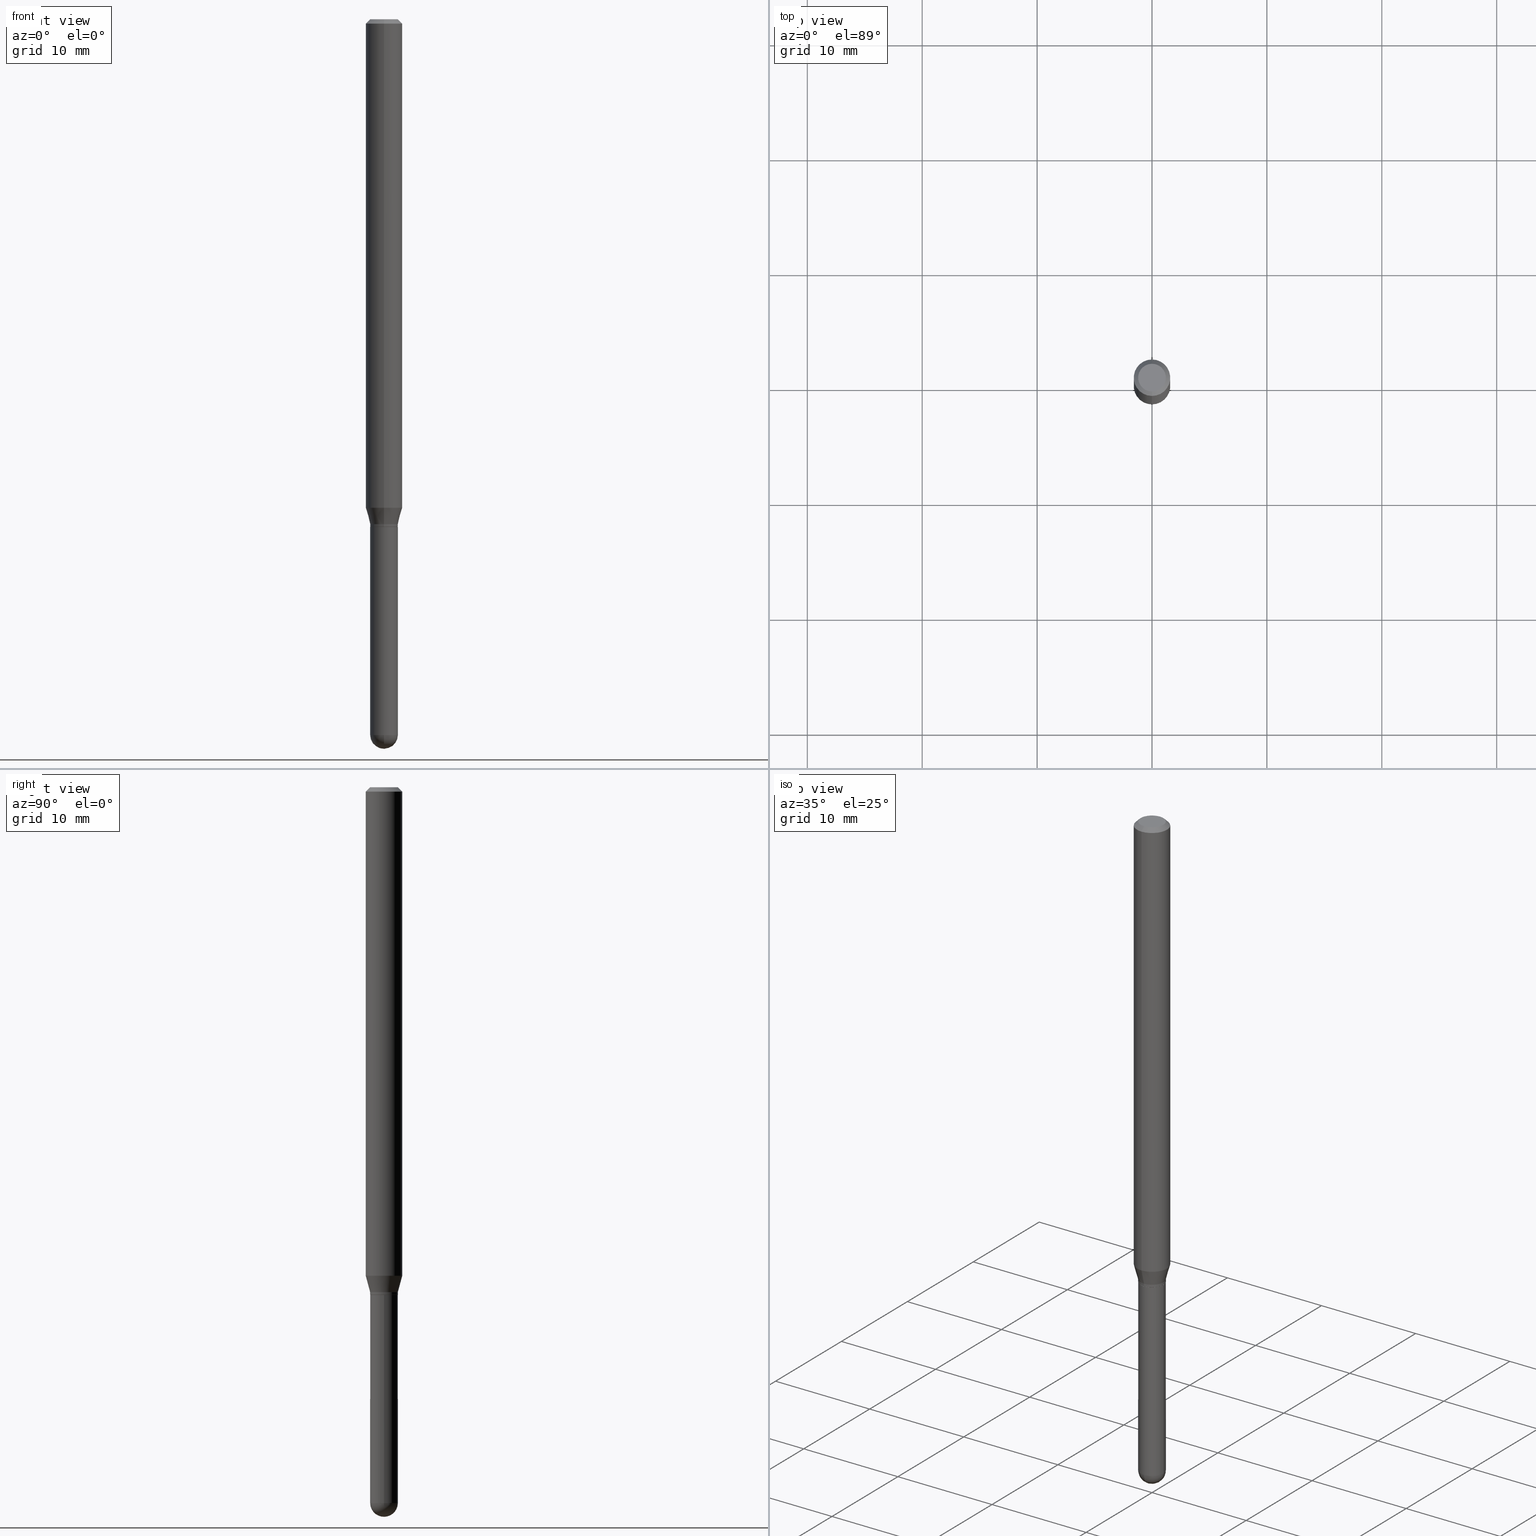
[diagram: canonical four-view strip — front | top / right | iso, engineering-drawing reading convention]
A machine part, canonical four-view strip (front | top / right | iso — engineering-drawing reading convention). The complete STEP part file that produces these views, byte-faithful:
ISO-10303-21;
HEADER;
FILE_DESCRIPTION (( 'STEP AP203' ),
    '1' );
FILE_NAME ('01549.STEP',
    '2024-03-07T19:38:31',
    ( '' ),
    ( '' ),
    'SwSTEP 2.0',
    'SolidWorks 2023',
    '' );
FILE_SCHEMA (( 'CONFIG_CONTROL_DESIGN' ));
ENDSEC;

DATA;
#1 = ORIENTED_EDGE ( 'NONE', *, *, #439, .T. ) ;
#2 = ORIENTED_EDGE ( 'NONE', *, *, #211, .F. ) ;
#3 = VERTEX_POINT ( 'NONE', #293 ) ;
#4 = DIRECTION ( 'NONE',  ( -6.982962677686266711E-15, -1.000000000000000000, 5.812442539711199378E-15 ) ) ;
#5 = AXIS2_PLACEMENT_3D ( 'NONE', #134, #452, #204 ) ;
#6 = AXIS2_PLACEMENT_3D ( 'NONE', #91, #495, #99 ) ;
#7 = DIRECTION ( 'NONE',  ( -2.445468806185136877E-29, 3.491481338843145188E-15, 1.000000000000000000 ) ) ;
#8 = VERTEX_POINT ( 'NONE', #503 ) ;
#9 = DIRECTION ( 'NONE',  ( -6.982962677686265133E-15, -1.000000000000000000, 3.491487841441210078E-15 ) ) ;
#10 = ORIENTED_EDGE ( 'NONE', *, *, #137, .T. ) ;
#11 = ORIENTED_EDGE ( 'NONE', *, *, #208, .F. ) ;
#12 = PERSON_AND_ORGANIZATION ( #451, #458 ) ;
#13 = AXIS2_PLACEMENT_3D ( 'NONE', #251, #371, #420 ) ;
#14 = AXIS2_PLACEMENT_3D ( 'NONE', #383, #509, #397 ) ;
#15 = ORIENTED_EDGE ( 'NONE', *, *, #461, .F. ) ;
#16 = LOCAL_TIME ( 14, 38, 31.00000000000000000, #364 ) ;
#17 = PERSON_AND_ORGANIZATION_ROLE ( 'design_owner' ) ;
#18 = CARTESIAN_POINT ( 'NONE',  ( 3.840629472727447874E-16, 0.04749999999999999362, -1.747056831868805136E-16 ) ) ;
#19 = CC_DESIGN_DATE_AND_TIME_ASSIGNMENT ( #145, #370, ( #124 ) ) ;
#20 = DIRECTION ( 'NONE',  ( -1.000000000000000000, 6.982962677686265922E-15, -4.876176775795935793E-29 ) ) ;
#21 = CYLINDRICAL_SURFACE ( 'NONE', #5, 0.04750000000000000749 ) ;
#22 = CALENDAR_DATE ( 2024, 7, 3 ) ;
#23 = VECTOR ( 'NONE', #179, 39.37007874015748143 ) ;
#24 = AXIS2_PLACEMENT_3D ( 'NONE', #313, #81, #192 ) ;
#25 = COORDINATED_UNIVERSAL_TIME_OFFSET ( 5, 0, .BEHIND. ) ;
#26 = EDGE_CURVE ( 'NONE', #434, #445, #224, .T. ) ;
#27 = VERTEX_POINT ( 'NONE', #380 ) ;
#28 = PERSON_AND_ORGANIZATION_ROLE ( 'creator' ) ;
#29 = PLANE ( 'NONE',  #77 ) ;
#30 = CARTESIAN_POINT ( 'NONE',  ( 0.000000000000000000, 0.000000000000000000, 0.000000000000000000 ) ) ;
#31 = AXIS2_PLACEMENT_3D ( 'NONE', #331, #34, #328 ) ;
#32 = CARTESIAN_POINT ( 'NONE',  ( 4.440892098501036369E-16, 0.06249999999999418521, -1.674019237886466227 ) ) ;
#33 = CARTESIAN_POINT ( 'NONE',  ( 4.255115722762138620E-29, -6.075177529587074600E-15, -1.740000000000000213 ) ) ;
#34 = DIRECTION ( 'NONE',  ( -2.445468806185136597E-29, 3.491481338843145583E-15, 1.000000000000000000 ) ) ;
#35 = ADVANCED_FACE ( 'NONE', ( #144 ), #416, .T. ) ;
#36 = CARTESIAN_POINT ( 'NONE',  ( 5.993450207295445537E-29, -8.568675055808764986E-15, -2.452500000000000124 ) ) ;
#37 = ORIENTED_EDGE ( 'NONE', *, *, #496, .F. ) ;
#38 = LINE ( 'NONE', #351, #449 ) ;
#39 = VECTOR ( 'NONE', #329, 39.37007874015748143 ) ;
#40 = ORIENTED_EDGE ( 'NONE', *, *, #78, .F. ) ;
#41 = DIRECTION ( 'NONE',  ( 6.982962677686265922E-15, 1.000000000000000000, -5.751258934030028949E-15 ) ) ;
#42 = APPROVAL ( #500, 'UNSPECIFIED' ) ;
#43 = CYLINDRICAL_SURFACE ( 'NONE', #116, 0.06250000000000000000 ) ;
#44 = CARTESIAN_POINT ( 'NONE',  ( -3.281992458512119547E-16, -0.04700000000000607164, -1.739999999999999769 ) ) ;
#45 = CARTESIAN_POINT ( 'NONE',  ( -4.364351673553916201E-16, -0.06250000000000000000, 2.182179900900756299E-16 ) ) ;
#46 = DIRECTION ( 'NONE',  ( 1.000000000000000000, -6.982962677686280910E-15, 0.000000000000000000 ) ) ;
#47 = ORIENTED_EDGE ( 'NONE', *, *, #64, .F. ) ;
#48 = CARTESIAN_POINT ( 'NONE',  ( 0.000000000000000000, 0.000000000000000000, 0.000000000000000000 ) ) ;
#49 = CC_DESIGN_PERSON_AND_ORGANIZATION_ASSIGNMENT ( #246, #415, ( #249 ) ) ;
#50 = EDGE_LOOP ( 'NONE', ( #369, #316, #312, #37 ) ) ;
#51 = APPLICATION_PROTOCOL_DEFINITION ( 'international standard', 'config_control_design', 1994, #56 ) ;
#52 = LINE ( 'NONE', #95, #285 ) ;
#53 = CARTESIAN_POINT ( 'NONE',  ( 4.253885089741886644E-29, -6.073443100186986632E-15, -1.739500000000000490 ) ) ;
#54 = CIRCLE ( 'NONE', #424, 0.04749999999999999362 ) ;
#55 = ORIENTED_EDGE ( 'NONE', *, *, #262, .F. ) ;
#56 = APPLICATION_CONTEXT ( 'configuration controlled 3d designs of mechanical parts and assemblies' ) ;
#57 = ORIENTED_EDGE ( 'NONE', *, *, #208, .T. ) ;
#58 = PLANE ( 'NONE',  #303 ) ;
#59 = ORIENTED_EDGE ( 'NONE', *, *, #268, .T. ) ;
#60 = DIRECTION ( 'NONE',  ( -2.445464265445177359E-29, 3.491487841441210078E-15, 1.000000000000000000 ) ) ;
#61 = DIRECTION ( 'NONE',  ( 2.445464265445177359E-29, -3.491487841441210078E-15, -1.000000000000000000 ) ) ;
#62 = LOCAL_TIME ( 14, 38, 31.00000000000000000, #63 ) ;
#63 = COORDINATED_UNIVERSAL_TIME_OFFSET ( 5, 0, .BEHIND. ) ;
#64 = EDGE_CURVE ( 'NONE', #189, #348, #197, .T. ) ;
#65 = APPROVAL_ROLE ( '' ) ;
#66 = CARTESIAN_POINT ( 'NONE',  ( -3.316907271900528910E-16, -0.04750000000000569045, -1.729999999999999760 ) ) ;
#67 = CARTESIAN_POINT ( 'NONE',  ( 4.230653179220157243E-29, -6.040273965693294263E-15, -1.730000000000000204 ) ) ;
#68 = CARTESIAN_POINT ( 'NONE',  ( -3.281992458512119547E-16, -0.04700000000000607164, -1.739999999999999769 ) ) ;
#69 = DIRECTION ( 'NONE',  ( -6.982962677686265133E-15, -1.000000000000000000, 5.751258934030070759E-15 ) ) ;
#70 = CC_DESIGN_PERSON_AND_ORGANIZATION_ASSIGNMENT ( #294, #28, ( #141 ) ) ;
#71 = DIRECTION ( 'NONE',  ( 6.982962677686265133E-15, 1.000000000000000000, 0.000000000000000000 ) ) ;
#72 = LOCAL_TIME ( 14, 38, 31.00000000000000000, #338 ) ;
#73 = COORDINATED_UNIVERSAL_TIME_OFFSET ( 5, 0, .BEHIND. ) ;
#74 = CARTESIAN_POINT ( 'NONE',  ( 3.316907271900976096E-16, 0.04749999999999999362, -1.702756778276689740E-16 ) ) ;
#75 = DIRECTION ( 'NONE',  ( 2.445464265445176798E-29, -3.491487841441210472E-15, -1.000000000000000000 ) ) ;
#76 = DIRECTION ( 'NONE',  ( -2.445464265445177359E-29, 3.491487841441210078E-15, 1.000000000000000000 ) ) ;
#77 = AXIS2_PLACEMENT_3D ( 'NONE', #74, #75, #177 ) ;
#78 = EDGE_CURVE ( 'NONE', #209, #233, #248, .T. ) ;
#79 = CIRCLE ( 'NONE', #392, 0.04699999999999999317 ) ;
#80 = ORIENTED_EDGE ( 'NONE', *, *, #402, .T. ) ;
#81 = DIRECTION ( 'NONE',  ( -2.445464265445177359E-29, 3.491487841441210078E-15, 1.000000000000000000 ) ) ;
#82 = DIRECTION ( 'NONE',  ( -2.445464265445177079E-29, 3.491487841441210472E-15, 1.000000000000000000 ) ) ;
#83 = PRODUCT_RELATED_PRODUCT_CATEGORY ( 'detail', '', ( #492 ) ) ;
#84 = DIRECTION ( 'NONE',  ( 1.000000000000000000, -6.982962677686280910E-15, 0.000000000000000000 ) ) ;
#85 = EDGE_CURVE ( 'NONE', #257, #446, #375, .T. ) ;
#86 = CIRCLE ( 'NONE', #212, 0.04750000000000000749 ) ;
#87 = LOCAL_TIME ( 14, 38, 31.00000000000000000, #25 ) ;
#88 = ORIENTED_EDGE ( 'NONE', *, *, #352, .T. ) ;
#89 = EDGE_LOOP ( 'NONE', ( #127, #55, #404, #382 ) ) ;
#90 = ORIENTED_EDGE ( 'NONE', *, *, #461, .T. ) ;
#91 = CARTESIAN_POINT ( 'NONE',  ( 3.668196398167768421E-31, -5.237231762161818937E-17, -0.01500000000000000812 ) ) ;
#92 = CARTESIAN_POINT ( 'NONE',  ( 5.997512247169047773E-29, -8.562857983512815004E-15, -2.452500000000000124 ) ) ;
#93 = ORIENTED_EDGE ( 'NONE', *, *, #473, .F. ) ;
#94 = MECHANICAL_CONTEXT ( 'NONE', #56, 'mechanical' ) ;
#95 = CARTESIAN_POINT ( 'NONE',  ( 3.375077994860450284E-16, 0.04749999999999964667, -1.658456724684562510E-16 ) ) ;
#96 = ORIENTED_EDGE ( 'NONE', *, *, #307, .T. ) ;
#97 = ORIENTED_EDGE ( 'NONE', *, *, #228, .F. ) ;
#98 = CIRCLE ( 'NONE', #440, 0.06250000000000000000 ) ;
#99 = DIRECTION ( 'NONE',  ( -6.982962677686265922E-15, -1.000000000000000000, 3.483106191921935554E-15 ) ) ;
#100 = PERSON_AND_ORGANIZATION ( #451, #458 ) ;
#101 = ORIENTED_EDGE ( 'NONE', *, *, #156, .F. ) ;
#102 = AXIS2_PLACEMENT_3D ( 'NONE', #33, #459, #178 ) ;
#103 = SECURITY_CLASSIFICATION_LEVEL ( 'unclassified' ) ;
#104 = EDGE_CURVE ( 'NONE', #434, #302, #52, .T. ) ;
#105 = CARTESIAN_POINT ( 'NONE',  ( -3.773273898774340269E-16, -0.04749999999999999362, 1.569856617500344536E-16 ) ) ;
#106 = CARTESIAN_POINT ( 'NONE',  ( -3.316907271900951444E-16, -0.04749999999999964667, 1.658456724684562510E-16 ) ) ;
#107 = ADVANCED_FACE ( 'NONE', ( #288 ), #256, .T. ) ;
#108 = PERSON_AND_ORGANIZATION ( #451, #458 ) ;
#109 = DIRECTION ( 'NONE',  ( -2.445464265445177359E-29, 3.491487841441210078E-15, 1.000000000000000000 ) ) ;
#110 = AXIS2_PLACEMENT_3D ( 'NONE', #428, #386, #398 ) ;
#111 = FACE_OUTER_BOUND ( 'NONE', #477, .T. ) ;
#112 = LINE ( 'NONE', #66, #399 ) ;
#113 = CC_DESIGN_DATE_AND_TIME_ASSIGNMENT ( #418, #506, ( #249 ) ) ;
#114 = CARTESIAN_POINT ( 'NONE',  ( 4.440892098500625669E-16, 0.06250000000000000000, -2.182179900900756299E-16 ) ) ;
#115 = CARTESIAN_POINT ( 'NONE',  ( -4.364351673553912750E-16, -0.06250000000000005551, -0.01499999999999979128 ) ) ;
#116 = AXIS2_PLACEMENT_3D ( 'NONE', #347, #353, #122 ) ;
#117 = DIRECTION ( 'NONE',  ( -2.445464265445177359E-29, 3.491487841441210078E-15, 1.000000000000000000 ) ) ;
#118 = ADVANCED_FACE ( 'NONE', ( #411 ), #21, .T. ) ;
#119 = ORIENTED_EDGE ( 'NONE', *, *, #104, .F. ) ;
#120 = ORIENTED_EDGE ( 'NONE', *, *, #414, .T. ) ;
#121 = CARTESIAN_POINT ( 'NONE',  ( 4.440892098501038342E-16, 0.06249999999999995143, -0.01500000000000022669 ) ) ;
#122 = DIRECTION ( 'NONE',  ( -6.982962677686265922E-15, -1.000000000000000000, 3.491487841441210078E-15 ) ) ;
#123 = AXIS2_PLACEMENT_3D ( 'NONE', #149, #512, #4 ) ;
#124 = SECURITY_CLASSIFICATION ( '', '', #103 ) ;
#125 = ORIENTED_EDGE ( 'NONE', *, *, #261, .T. ) ;
#126 = ORIENTED_EDGE ( 'NONE', *, *, #156, .T. ) ;
#127 = ORIENTED_EDGE ( 'NONE', *, *, #85, .F. ) ;
#128 = DIRECTION ( 'NONE',  ( 2.438088387897960049E-29, -3.491481338843145188E-15, -1.000000000000000000 ) ) ;
#129 = ORIENTED_EDGE ( 'NONE', *, *, #307, .F. ) ;
#130 = CARTESIAN_POINT ( 'NONE',  ( 3.316907271901401095E-16, 0.04749999999999392208, -1.740000000000000657 ) ) ;
#131 = ADVANCED_FACE ( 'NONE', ( #357 ), #482, .T. ) ;
#132 = ORIENTED_EDGE ( 'NONE', *, *, #289, .F. ) ;
#133 = AXIS2_PLACEMENT_3D ( 'NONE', #489, #355, #443 ) ;
#134 = CARTESIAN_POINT ( 'NONE',  ( 0.000000000000000000, 0.000000000000000000, 0.000000000000000000 ) ) ;
#135 = AXIS2_PLACEMENT_3D ( 'NONE', #162, #327, #172 ) ;
#136 = DIRECTION ( 'NONE',  ( -2.445464265445177359E-29, 3.491487841441210078E-15, 1.000000000000000000 ) ) ;
#137 = EDGE_CURVE ( 'NONE', #394, #446, #190, .T. ) ;
#138 = DIRECTION ( 'NONE',  ( -2.445464265445177359E-29, 3.491487841441210078E-15, 1.000000000000000000 ) ) ;
#139 = DIRECTION ( 'NONE',  ( -2.445468806185136877E-29, 3.491481338843145188E-15, 1.000000000000000000 ) ) ;
#140 = AXIS2_PLACEMENT_3D ( 'NONE', #182, #296, #148 ) ;
#141 = PRODUCT_DEFINITION_FORMATION_WITH_SPECIFIED_SOURCE ( 'ANY', '', #492, .NOT_KNOWN. ) ;
#142 = SPHERICAL_SURFACE ( 'NONE', #140, 0.04749999999999998668 ) ;
#143 = FACE_OUTER_BOUND ( 'NONE', #272, .T. ) ;
#144 = FACE_OUTER_BOUND ( 'NONE', #510, .T. ) ;
#145 = DATE_AND_TIME ( #304, #62 ) ;
#146 = CARTESIAN_POINT ( 'NONE',  ( -0.04750000000000000749, -6.981509957063897703E-15, -2.452500000000000124 ) ) ;
#147 = SHAPE_DEFINITION_REPRESENTATION ( #412, #195 ) ;
#148 = DIRECTION ( 'NONE',  ( 6.982962677686265922E-15, 1.000000000000000000, -5.751258934030028949E-15 ) ) ;
#149 = CARTESIAN_POINT ( 'NONE',  ( 4.255107821874609126E-29, -6.075188844107705456E-15, -1.739999999999999991 ) ) ;
#150 = VERTEX_POINT ( 'NONE', #18 ) ;
#151 = MANIFOLD_SOLID_BREP ( 'Body-Move/Copy2[1]', #390 ) ;
#152 = FACE_OUTER_BOUND ( 'NONE', #337, .T. ) ;
#153 = ORIENTED_EDGE ( 'NONE', *, *, #470, .T. ) ;
#154 = CLOSED_SHELL ( 'NONE', ( #450, #220, #131, #222, #300, #35, #343, #107, #247, #433, #368, #407 ) ) ;
#155 = FACE_OUTER_BOUND ( 'NONE', #484, .T. ) ;
#156 = EDGE_CURVE ( 'NONE', #8, #27, #265, .T. ) ;
#157 = CONICAL_SURFACE ( 'NONE', #123, 0.04699999999999999317, 0.7853981633974739252 ) ;
#158 = DIRECTION ( 'NONE',  ( -6.982962677686265922E-15, -1.000000000000000000, 3.491487841441210472E-15 ) ) ;
#159 = EDGE_CURVE ( 'NONE', #269, #27, #310, .T. ) ;
#160 = DIRECTION ( 'NONE',  ( -2.445464265445177359E-29, 3.491487841441210078E-15, 1.000000000000000000 ) ) ;
#161 = ORIENTED_EDGE ( 'NONE', *, *, #352, .F. ) ;
#162 = CARTESIAN_POINT ( 'NONE',  ( 4.093754225919121089E-29, -5.844817815419276990E-15, -1.674019237886465783 ) ) ;
#163 = AXIS2_PLACEMENT_3D ( 'NONE', #422, #457, #507 ) ;
#164 = AXIS2_PLACEMENT_3D ( 'NONE', #472, #76, #393 ) ;
#165 = ORIENTED_EDGE ( 'NONE', *, *, #402, .F. ) ;
#166 = ORIENTED_EDGE ( 'NONE', *, *, #262, .T. ) ;
#167 = LINE ( 'NONE', #319, #425 ) ;
#168 = DATE_AND_TIME ( #22, #16 ) ;
#169 = CC_DESIGN_PERSON_AND_ORGANIZATION_ASSIGNMENT ( #426, #252, ( #141 ) ) ;
#170 = AXIS2_PLACEMENT_3D ( 'NONE', #30, #427, #340 ) ;
#171 = AXIS2_PLACEMENT_3D ( 'NONE', #344, #196, #158 ) ;
#172 = DIRECTION ( 'NONE',  ( -6.982962677686265922E-15, -1.000000000000000000, 4.370956789862821150E-15 ) ) ;
#173 = EDGE_CURVE ( 'NONE', #445, #3, #305, .T. ) ;
#174 = DIRECTION ( 'NONE',  ( 6.982962677686265922E-15, 1.000000000000000000, -3.483106191921935554E-15 ) ) ;
#175 = EDGE_LOOP ( 'NONE', ( #88, #486 ) ) ;
#176 = DATE_AND_TIME ( #463, #72 ) ;
#177 = DIRECTION ( 'NONE',  ( 6.982962677686265922E-15, 1.000000000000000000, -3.491487841441210472E-15 ) ) ;
#178 = DIRECTION ( 'NONE',  ( 1.000000000000000000, -6.982962677686261977E-15, 0.000000000000000000 ) ) ;
#179 = DIRECTION ( 'NONE',  ( -2.445464265445177079E-29, 3.491487841441210472E-15, 1.000000000000000000 ) ) ;
#180 = DIRECTION ( 'NONE',  ( -2.445464265445177359E-29, 3.491487841441210078E-15, 1.000000000000000000 ) ) ;
#181 = CIRCLE ( 'NONE', #366, 0.04749999999999998668 ) ;
#182 = CARTESIAN_POINT ( 'NONE',  ( 5.993450207295445537E-29, -8.568675055808764986E-15, -2.452500000000000124 ) ) ;
#183 = DIRECTION ( 'NONE',  ( -2.445464265445177359E-29, 3.491487841441210078E-15, 1.000000000000000000 ) ) ;
#184 = CARTESIAN_POINT ( 'NONE',  ( 3.357314426466885089E-16, 0.04699999999999391470, -1.740000000000000213 ) ) ;
#185 = DIRECTION ( 'NONE',  ( -6.982962677686266711E-15, -1.000000000000000000, 5.812442539711199378E-15 ) ) ;
#186 = AXIS2_PLACEMENT_3D ( 'NONE', #216, #180, #336 ) ;
#187 = CC_DESIGN_SECURITY_CLASSIFICATION ( #124, ( #141 ) ) ;
#188 = CYLINDRICAL_SURFACE ( 'NONE', #164, 0.04749999999999964667 ) ;
#189 = VERTEX_POINT ( 'NONE', #467 ) ;
#190 = LINE ( 'NONE', #45, #350 ) ;
#191 = EDGE_CURVE ( 'NONE', #3, #394, #112, .T. ) ;
#192 = DIRECTION ( 'NONE',  ( -6.982962677686265133E-15, -1.000000000000000000, 5.751258934030070759E-15 ) ) ;
#193 = ORIENTED_EDGE ( 'NONE', *, *, #453, .F. ) ;
#194 = ADVANCED_FACE ( 'NONE', ( #143 ), #142, .T. ) ;
#195 = ADVANCED_BREP_SHAPE_REPRESENTATION ( '01549', ( #151, #321, #213 ), #485 ) ;
#196 = DIRECTION ( 'NONE',  ( -2.445464265445176798E-29, 3.491487841441210472E-15, 1.000000000000000000 ) ) ;
#197 = CIRCLE ( 'NONE', #102, 0.04749999999999999362 ) ;
#198 = SPHERICAL_SURFACE ( 'NONE', #244, 0.04749999999999998668 ) ;
#199 = APPROVAL_PERSON_ORGANIZATION ( #108, #230, #65 ) ;
#200 = ORIENTED_EDGE ( 'NONE', *, *, #191, .T. ) ;
#201 = DIRECTION ( 'NONE',  ( -4.937700262164674260E-15, -0.7071067811865632269, 0.7071067811865319186 ) ) ;
#202 = FACE_OUTER_BOUND ( 'NONE', #175, .T. ) ;
#203 = APPROVAL ( #243, 'UNSPECIFIED' ) ;
#204 = DIRECTION ( 'NONE',  ( 1.000000000000000000, -6.982962677686266711E-15, 4.876176775795934672E-29 ) ) ;
#205 = ORIENTED_EDGE ( 'NONE', *, *, #334, .F. ) ;
#206 = VECTOR ( 'NONE', #82, 39.37007874015748143 ) ;
#207 = DIRECTION ( 'NONE',  ( 4.937700262164548042E-15, 0.7071067811865451302, -0.7071067811865499042 ) ) ;
#208 = EDGE_CURVE ( 'NONE', #27, #487, #391, .T. ) ;
#209 = VERTEX_POINT ( 'NONE', #184 ) ;
#210 = CALENDAR_DATE ( 2024, 7, 3 ) ;
#211 = EDGE_CURVE ( 'NONE', #209, #434, #339, .T. ) ;
#212 = AXIS2_PLACEMENT_3D ( 'NONE', #387, #474, #273 ) ;
#213 = AXIS2_PLACEMENT_3D ( 'NONE', #241, #406, #238 ) ;
#214 = DIRECTION ( 'NONE',  ( -2.445464265445177359E-29, 3.491487841441210078E-15, 1.000000000000000000 ) ) ;
#215 = ADVANCED_FACE ( 'NONE', ( #111 ), #217, .T. ) ;
#216 = CARTESIAN_POINT ( 'NONE',  ( 4.255107821874609126E-29, -6.075188844107705456E-15, -1.739999999999999991 ) ) ;
#217 = CYLINDRICAL_SURFACE ( 'NONE', #170, 0.04750000000000000749 ) ;
#218 = AXIS2_PLACEMENT_3D ( 'NONE', #255, #109, #185 ) ;
#219 = LINE ( 'NONE', #295, #468 ) ;
#220 = ADVANCED_FACE ( 'NONE', ( #223 ), #409, .T. ) ;
#221 = FACE_OUTER_BOUND ( 'NONE', #437, .T. ) ;
#222 = ADVANCED_FACE ( 'NONE', ( #501 ), #464, .T. ) ;
#223 = FACE_OUTER_BOUND ( 'NONE', #478, .T. ) ;
#224 = CIRCLE ( 'NONE', #13, 0.04749999999999964667 ) ;
#225 = AXIS2_PLACEMENT_3D ( 'NONE', #419, #214, #299 ) ;
#226 = APPROVAL_PERSON_ORGANIZATION ( #12, #203, #245 ) ;
#227 = DIRECTION ( 'NONE',  ( -2.445468806185136597E-29, 3.491481338843145583E-15, 1.000000000000000000 ) ) ;
#228 = EDGE_CURVE ( 'NONE', #8, #274, #181, .T. ) ;
#229 = ORIENTED_EDGE ( 'NONE', *, *, #473, .T. ) ;
#230 = APPROVAL ( #466, 'UNSPECIFIED' ) ;
#231 = CARTESIAN_POINT ( 'NONE',  ( 4.255115722762138620E-29, -6.075177529587074600E-15, -1.740000000000000213 ) ) ;
#232 = FACE_OUTER_BOUND ( 'NONE', #240, .T. ) ;
#233 = VERTEX_POINT ( 'NONE', #68 ) ;
#234 = CONICAL_SURFACE ( 'NONE', #14, 0.04749999999999964667, 0.2617993877991505181 ) ;
#235 = CARTESIAN_POINT ( 'NONE',  ( 3.375077994860883172E-16, 0.04749999999999367922, -1.739500000000000712 ) ) ;
#236 = AXIS2_PLACEMENT_3D ( 'NONE', #48, #117, #9 ) ;
#237 = DESIGN_CONTEXT ( 'detailed design', #374, 'design' ) ;
#238 = DIRECTION ( 'NONE',  ( 1.000000000000000000, 0.000000000000000000, 0.000000000000000000 ) ) ;
#239 = EDGE_CURVE ( 'NONE', #257, #150, #54, .T. ) ;
#240 = EDGE_LOOP ( 'NONE', ( #2, #356, #96, #405 ) ) ;
#241 = CARTESIAN_POINT ( 'NONE',  ( 0.000000000000000000, 0.000000000000000000, 0.000000000000000000 ) ) ;
#242 = ORIENTED_EDGE ( 'NONE', *, *, #372, .F. ) ;
#243 = APPROVAL_STATUS ( 'not_yet_approved' ) ;
#244 = AXIS2_PLACEMENT_3D ( 'NONE', #432, #306, #41 ) ;
#245 = APPROVAL_ROLE ( '' ) ;
#246 = PERSON_AND_ORGANIZATION ( #451, #458 ) ;
#247 = ADVANCED_FACE ( 'NONE', ( #499 ), #29, .F. ) ;
#248 = CIRCLE ( 'NONE', #186, 0.04699999999999999317 ) ;
#249 = PRODUCT_DEFINITION ( 'UNKNOWN', '', #141, #237 ) ;
#250 = DIRECTION ( 'NONE',  ( -6.982962677686266711E-15, -1.000000000000000000, 3.491487841441210472E-15 ) ) ;
#251 = CARTESIAN_POINT ( 'NONE',  ( 4.253885089741886644E-29, -6.073443100186986632E-15, -1.739500000000000490 ) ) ;
#252 = PERSON_AND_ORGANIZATION_ROLE ( 'design_supplier' ) ;
#253 = CARTESIAN_POINT ( 'NONE',  ( 2.166683960336476528E-46, -3.093461969841281270E-32, -8.860010718423030018E-18 ) ) ;
#254 = CALENDAR_DATE ( 2024, 7, 3 ) ;
#255 = CARTESIAN_POINT ( 'NONE',  ( 4.255107821874609126E-29, -6.075188844107705456E-15, -1.739999999999999991 ) ) ;
#256 = CONICAL_SURFACE ( 'NONE', #325, 0.06250000000000000000, 0.7853981633974483900 ) ;
#257 = VERTEX_POINT ( 'NONE', #105 ) ;
#258 = CC_DESIGN_PERSON_AND_ORGANIZATION_ASSIGNMENT ( #460, #330, ( #124 ) ) ;
#259 = APPROVAL_DATE_TIME ( #176, #42 ) ;
#260 = DIRECTION ( 'NONE',  ( -1.807323732225331717E-15, -0.2588190451025184080, 0.9659258262890689783 ) ) ;
#261 = EDGE_CURVE ( 'NONE', #302, #276, #219, .T. ) ;
#262 = EDGE_CURVE ( 'NONE', #150, #257, #430, .T. ) ;
#263 = CARTESIAN_POINT ( 'NONE',  ( 3.339550858072895387E-16, 0.04699999999999391470, -1.740000000000000213 ) ) ;
#264 = DIRECTION ( 'NONE',  ( -2.445468806185136597E-29, 3.491481338843145583E-15, 1.000000000000000000 ) ) ;
#265 = CIRCLE ( 'NONE', #133, 0.04749999999999998668 ) ;
#266 = CC_DESIGN_APPROVAL ( #42, ( #141 ) ) ;
#267 = CARTESIAN_POINT ( 'NONE',  ( 5.997512247169047773E-29, -8.562857983512815004E-15, -2.452500000000000124 ) ) ;
#268 = EDGE_CURVE ( 'NONE', #487, #348, #502, .T. ) ;
#269 = VERTEX_POINT ( 'NONE', #146 ) ;
#270 = LINE ( 'NONE', #44, #301 ) ;
#271 = ORIENTED_EDGE ( 'NONE', *, *, #211, .T. ) ;
#272 = EDGE_LOOP ( 'NONE', ( #101, #413, #205, #11 ) ) ;
#273 = DIRECTION ( 'NONE',  ( 1.000000000000000000, -6.982962677686280910E-15, 0.000000000000000000 ) ) ;
#274 = VERTEX_POINT ( 'NONE', #291 ) ;
#275 = CIRCLE ( 'NONE', #475, 0.04749999999999999362 ) ;
#276 = VERTEX_POINT ( 'NONE', #32 ) ;
#277 = CARTESIAN_POINT ( 'NONE',  ( 3.668196398167768421E-31, -5.237231762161818937E-17, -0.01500000000000000812 ) ) ;
#278 = ORIENTED_EDGE ( 'NONE', *, *, #261, .F. ) ;
#279 = CARTESIAN_POINT ( 'NONE',  ( 4.255107821874609126E-29, -6.075188844107705456E-15, -1.739999999999999991 ) ) ;
#280 = ORIENTED_EDGE ( 'NONE', *, *, #454, .F. ) ;
#281 = ORIENTED_EDGE ( 'NONE', *, *, #137, .F. ) ;
#282 = CARTESIAN_POINT ( 'NONE',  ( 4.093754225919121089E-29, -5.844817815419276990E-15, -1.674019237886465783 ) ) ;
#283 = DIRECTION ( 'NONE',  ( -2.445464265445177079E-29, 3.491487841441210472E-15, 1.000000000000000000 ) ) ;
#284 = ORIENTED_EDGE ( 'NONE', *, *, #414, .F. ) ;
#285 = VECTOR ( 'NONE', #283, 39.37007874015748143 ) ;
#286 = CC_DESIGN_APPROVAL ( #203, ( #249 ) ) ;
#287 = ORIENTED_EDGE ( 'NONE', *, *, #483, .T. ) ;
#288 = FACE_OUTER_BOUND ( 'NONE', #89, .T. ) ;
#289 = EDGE_CURVE ( 'NONE', #3, #302, #332, .T. ) ;
#290 = DIMENSIONAL_EXPONENTS ( 1.000000000000000000, 0.000000000000000000, 0.000000000000000000, 0.000000000000000000, 0.000000000000000000, 0.000000000000000000, 0.000000000000000000 ) ;
#291 = CARTESIAN_POINT ( 'NONE',  ( 3.316907271901575630E-16, 0.04749999999999143102, -2.452500000000000568 ) ) ;
#292 = CIRCLE ( 'NONE', #359, 0.04750000000000000749 ) ;
#293 = CARTESIAN_POINT ( 'NONE',  ( -3.316907271900528910E-16, -0.04750000000000569045, -1.729999999999999760 ) ) ;
#294 = PERSON_AND_ORGANIZATION ( #451, #458 ) ;
#295 = CARTESIAN_POINT ( 'NONE',  ( 3.375077994860872818E-16, 0.04749999999999360289, -1.730000000000000426 ) ) ;
#296 = DIRECTION ( 'NONE',  ( -1.000000000000000000, 6.982962677686265922E-15, -4.883557194083112340E-29 ) ) ;
#297 = CARTESIAN_POINT ( 'NONE',  ( -4.287811248607203282E-16, -0.06250000000000005551, -0.01499999999999979128 ) ) ;
#298 = APPROVAL_DATE_TIME ( #504, #230 ) ;
#299 = DIRECTION ( 'NONE',  ( -6.982962677686265133E-15, -1.000000000000000000, 5.751258934030070759E-15 ) ) ;
#300 = ADVANCED_FACE ( 'NONE', ( #221 ), #234, .T. ) ;
#301 = VECTOR ( 'NONE', #201, 39.37007874015748143 ) ;
#302 = VERTEX_POINT ( 'NONE', #429 ) ;
#303 = AXIS2_PLACEMENT_3D ( 'NONE', #130, #128, #20 ) ;
#304 = CALENDAR_DATE ( 2024, 7, 3 ) ;
#305 = LINE ( 'NONE', #106, #23 ) ;
#306 = DIRECTION ( 'NONE',  ( -1.000000000000000000, 6.982962677686265922E-15, -4.883557194083112340E-29 ) ) ;
#307 = EDGE_CURVE ( 'NONE', #233, #445, #270, .T. ) ;
#308 = ORIENTED_EDGE ( 'NONE', *, *, #159, .T. ) ;
#309 = PLANE ( 'NONE',  #171 ) ;
#310 = CIRCLE ( 'NONE', #317, 0.04750000000000000749 ) ;
#311 = CYLINDRICAL_SURFACE ( 'NONE', #236, 0.04749999999999964667 ) ;
#312 = ORIENTED_EDGE ( 'NONE', *, *, #453, .T. ) ;
#313 = CARTESIAN_POINT ( 'NONE',  ( 4.230653179220157243E-29, -6.040273965693294263E-15, -1.730000000000000204 ) ) ;
#314 = UNCERTAINTY_MEASURE_WITH_UNIT (LENGTH_MEASURE( 1.000000000000000082E-05 ), #365, 'distance_accuracy_value', 'NONE');
#315 = FACE_OUTER_BOUND ( 'NONE', #326, .T. ) ;
#316 = ORIENTED_EDGE ( 'NONE', *, *, #85, .T. ) ;
#317 = AXIS2_PLACEMENT_3D ( 'NONE', #92, #400, #46 ) ;
#318 = EDGE_LOOP ( 'NONE', ( #284, #308, #57, #59, #47 ) ) ;
#319 = CARTESIAN_POINT ( 'NONE',  ( 4.364351673553919652E-16, 0.06249999999999995143, -0.01500000000000022669 ) ) ;
#320 = ORIENTED_EDGE ( 'NONE', *, *, #173, .T. ) ;
#321 = MANIFOLD_SOLID_BREP ( 'Body-Move/Copy2[2]', #154 ) ;
#322 = EDGE_LOOP ( 'NONE', ( #97, #126, #442, #242 ) ) ;
#323 = ORIENTED_EDGE ( 'NONE', *, *, #483, .F. ) ;
#324 = APPROVAL_DATE_TIME ( #168, #203 ) ;
#325 = AXIS2_PLACEMENT_3D ( 'NONE', #448, #61, #174 ) ;
#326 = EDGE_LOOP ( 'NONE', ( #15, #40 ) ) ;
#327 = DIRECTION ( 'NONE',  ( -2.445464265445177359E-29, 3.491487841441210078E-15, 1.000000000000000000 ) ) ;
#328 = DIRECTION ( 'NONE',  ( 1.000000000000000000, -6.982962677686280910E-15, 0.000000000000000000 ) ) ;
#329 = DIRECTION ( 'NONE',  ( -4.851104656540964275E-15, -0.7071067811865500152, -0.7071067811865450192 ) ) ;
#330 = PERSON_AND_ORGANIZATION_ROLE ( 'classification_officer' ) ;
#331 = CARTESIAN_POINT ( 'NONE',  ( 5.997512247169047773E-29, -8.562857983512815004E-15, -2.452500000000000124 ) ) ;
#332 = CIRCLE ( 'NONE', #225, 0.04749999999999964667 ) ;
#333 = CIRCLE ( 'NONE', #24, 0.04749999999999964667 ) ;
#334 = EDGE_CURVE ( 'NONE', #487, #274, #86, .T. ) ;
#335 = DIRECTION ( 'NONE',  ( 1.000000000000000000, -6.982962677686265922E-15, 4.883557194083112340E-29 ) ) ;
#336 = DIRECTION ( 'NONE',  ( -6.982962677686266711E-15, -1.000000000000000000, 5.812442539711199378E-15 ) ) ;
#337 = EDGE_LOOP ( 'NONE', ( #119, #465, #320, #480 ) ) ;
#338 = COORDINATED_UNIVERSAL_TIME_OFFSET ( 5, 0, .BEHIND. ) ;
#339 = LINE ( 'NONE', #263, #379 ) ;
#340 = DIRECTION ( 'NONE',  ( 1.000000000000000000, -6.982962677686266711E-15, 4.876176775795934672E-29 ) ) ;
#341 = EDGE_LOOP ( 'NONE', ( #166, #384 ) ) ;
#342 = LOCAL_TIME ( 14, 38, 31.00000000000000000, #73 ) ;
#343 = ADVANCED_FACE ( 'NONE', ( #441 ), #43, .T. ) ;
#344 = CARTESIAN_POINT ( 'NONE',  ( 4.255107821874609126E-29, -6.075188844107705456E-15, -1.739999999999999991 ) ) ;
#345 = EDGE_LOOP ( 'NONE', ( #165, #287, #10, #280 ) ) ;
#346 = ORIENTED_EDGE ( 'NONE', *, *, #289, .T. ) ;
#347 = CARTESIAN_POINT ( 'NONE',  ( 0.000000000000000000, 0.000000000000000000, 0.000000000000000000 ) ) ;
#348 = VERTEX_POINT ( 'NONE', #438 ) ;
#349 = CARTESIAN_POINT ( 'NONE',  ( -4.364351673553505007E-16, -0.06250000000000581479, -1.674019237886465561 ) ) ;
#350 = VECTOR ( 'NONE', #354, 39.37007874015748143 ) ;
#351 = CARTESIAN_POINT ( 'NONE',  ( -0.04750000000000000749, 3.375077994860476415E-16, -2.336494167871080260E-30 ) ) ;
#352 = EDGE_CURVE ( 'NONE', #348, #189, #275, .T. ) ;
#353 = DIRECTION ( 'NONE',  ( -2.445464265445177359E-29, 3.491487841441210078E-15, 1.000000000000000000 ) ) ;
#354 = DIRECTION ( 'NONE',  ( -2.445464265445177079E-29, 3.491487841441210472E-15, 1.000000000000000000 ) ) ;
#355 = DIRECTION ( 'NONE',  ( -1.000000000000000000, 7.105427357601001070E-15, -4.926315508542082329E-29 ) ) ;
#356 = ORIENTED_EDGE ( 'NONE', *, *, #78, .T. ) ;
#357 = FACE_OUTER_BOUND ( 'NONE', #50, .T. ) ;
#358 = EDGE_LOOP ( 'NONE', ( #153, #80, #193, #281 ) ) ;
#359 = AXIS2_PLACEMENT_3D ( 'NONE', #267, #227, #84 ) ;
#360 = DIRECTION ( 'NONE',  ( -6.982962677686266711E-15, -1.000000000000000000, 5.812442539711199378E-15 ) ) ;
#361 = CIRCLE ( 'NONE', #469, 0.04749999999999964667 ) ;
#362 = VERTEX_POINT ( 'NONE', #121 ) ;
#363 = DIRECTION ( 'NONE',  ( -6.982962677686265922E-15, -1.000000000000000000, 4.370956789862821150E-15 ) ) ;
#364 = COORDINATED_UNIVERSAL_TIME_OFFSET ( 5, 0, .BEHIND. ) ;
#365 =( CONVERSION_BASED_UNIT ( 'INCH', #491 ) LENGTH_UNIT ( ) NAMED_UNIT ( #290 ) );
#366 = AXIS2_PLACEMENT_3D ( 'NONE', #36, #335, #71 ) ;
#367 = AXIS2_PLACEMENT_3D ( 'NONE', #277, #160, #481 ) ;
#368 = ADVANCED_FACE ( 'NONE', ( #232 ), #157, .T. ) ;
#369 = ORIENTED_EDGE ( 'NONE', *, *, #239, .F. ) ;
#370 = DATE_TIME_ROLE ( 'classification_date' ) ;
#371 = DIRECTION ( 'NONE',  ( -2.445464265445177359E-29, 3.491487841441210078E-15, 1.000000000000000000 ) ) ;
#372 = EDGE_CURVE ( 'NONE', #274, #269, #292, .T. ) ;
#373 = DIRECTION ( 'NONE',  ( -2.445464265445177359E-29, 3.491487841441210078E-15, 1.000000000000000000 ) ) ;
#374 = APPLICATION_CONTEXT ( 'configuration controlled 3d designs of mechanical parts and assemblies' ) ;
#375 = LINE ( 'NONE', #297, #39 ) ;
#376 = CC_DESIGN_PERSON_AND_ORGANIZATION_ASSIGNMENT ( #100, #17, ( #492 ) ) ;
#377 = PERSON_AND_ORGANIZATION ( #451, #458 ) ;
#378 = CARTESIAN_POINT ( 'NONE',  ( 0.04750000000000000749, -3.316907271900977082E-16, 2.316183968503069432E-30 ) ) ;
#379 = VECTOR ( 'NONE', #471, 39.37007874015748143 ) ;
#380 = CARTESIAN_POINT ( 'NONE',  ( -3.375077994859875895E-16, -0.04750000000000855621, -2.452499999999999680 ) ) ;
#381 = DIRECTION ( 'NONE',  ( 1.839019923739601893E-15, 0.2588190451025252359, 0.9659258262890670910 ) ) ;
#382 = ORIENTED_EDGE ( 'NONE', *, *, #454, .T. ) ;
#383 = CARTESIAN_POINT ( 'NONE',  ( 4.230653179220157243E-29, -6.040273965693294263E-15, -1.730000000000000204 ) ) ;
#384 = ORIENTED_EDGE ( 'NONE', *, *, #239, .T. ) ;
#385 = ORIENTED_EDGE ( 'NONE', *, *, #334, .T. ) ;
#386 = DIRECTION ( 'NONE',  ( 2.445464265445177359E-29, -3.491487841441210078E-15, -1.000000000000000000 ) ) ;
#387 = CARTESIAN_POINT ( 'NONE',  ( 5.997512247169047773E-29, -8.562857983512815004E-15, -2.452500000000000124 ) ) ;
#388 = ADVANCED_FACE ( 'NONE', ( #403 ), #198, .T. ) ;
#389 = ORIENTED_EDGE ( 'NONE', *, *, #173, .F. ) ;
#390 = CLOSED_SHELL ( 'NONE', ( #215, #388, #494, #194, #118 ) ) ;
#391 = CIRCLE ( 'NONE', #31, 0.04750000000000000749 ) ;
#392 = AXIS2_PLACEMENT_3D ( 'NONE', #279, #60, #360 ) ;
#393 = DIRECTION ( 'NONE',  ( -6.982962677686265133E-15, -1.000000000000000000, 3.491487841441210078E-15 ) ) ;
#394 = VERTEX_POINT ( 'NONE', #349 ) ;
#395 = LINE ( 'NONE', #114, #206 ) ;
#396 = ORIENTED_EDGE ( 'NONE', *, *, #104, .T. ) ;
#397 = DIRECTION ( 'NONE',  ( -6.982962677686265133E-15, -1.000000000000000000, 5.751258934030070759E-15 ) ) ;
#398 = DIRECTION ( 'NONE',  ( 6.982962677686265922E-15, 1.000000000000000000, -3.483106191921935554E-15 ) ) ;
#399 = VECTOR ( 'NONE', #260, 39.37007874015748854 ) ;
#400 = DIRECTION ( 'NONE',  ( -2.445468806185136597E-29, 3.491481338843145583E-15, 1.000000000000000000 ) ) ;
#401 = CIRCLE ( 'NONE', #367, 0.06250000000000000000 ) ;
#402 = EDGE_CURVE ( 'NONE', #276, #362, #395, .T. ) ;
#403 = FACE_OUTER_BOUND ( 'NONE', #322, .T. ) ;
#404 = ORIENTED_EDGE ( 'NONE', *, *, #496, .T. ) ;
#405 = ORIENTED_EDGE ( 'NONE', *, *, #26, .F. ) ;
#406 = DIRECTION ( 'NONE',  ( 0.000000000000000000, 0.000000000000000000, 1.000000000000000000 ) ) ;
#407 = ADVANCED_FACE ( 'NONE', ( #152 ), #188, .T. ) ;
#408 = ORIENTED_EDGE ( 'NONE', *, *, #372, .T. ) ;
#409 = CONICAL_SURFACE ( 'NONE', #218, 0.04699999999999999317, 0.7853981633974739252 ) ;
#410 =( LENGTH_UNIT ( ) NAMED_UNIT ( * ) SI_UNIT ( $, .METRE. ) );
#411 = FACE_OUTER_BOUND ( 'NONE', #318, .T. ) ;
#412 = PRODUCT_DEFINITION_SHAPE ( 'NONE', 'NONE',  #249 ) ;
#413 = ORIENTED_EDGE ( 'NONE', *, *, #228, .T. ) ;
#414 = EDGE_CURVE ( 'NONE', #269, #189, #38, .T. ) ;
#415 = PERSON_AND_ORGANIZATION_ROLE ( 'creator' ) ;
#416 = CONICAL_SURFACE ( 'NONE', #493, 0.04749999999999964667, 0.2617993877991505181 ) ;
#417 = CIRCLE ( 'NONE', #6, 0.06250000000000000000 ) ;
#418 = DATE_AND_TIME ( #210, #87 ) ;
#419 = CARTESIAN_POINT ( 'NONE',  ( 4.230653179220157243E-29, -6.040273965693294263E-15, -1.730000000000000204 ) ) ;
#420 = DIRECTION ( 'NONE',  ( -6.982962677686265133E-15, -1.000000000000000000, 5.751258934030070759E-15 ) ) ;
#421 = DIRECTION ( 'NONE',  ( -2.445464265445177359E-29, 3.491487841441210078E-15, 1.000000000000000000 ) ) ;
#422 = CARTESIAN_POINT ( 'NONE',  ( 0.000000000000000000, 0.000000000000000000, 0.000000000000000000 ) ) ;
#423 = VECTOR ( 'NONE', #139, 39.37007874015748143 ) ;
#424 = AXIS2_PLACEMENT_3D ( 'NONE', #253, #373, #250 ) ;
#425 = VECTOR ( 'NONE', #207, 39.37007874015748143 ) ;
#426 = PERSON_AND_ORGANIZATION ( #451, #458 ) ;
#427 = DIRECTION ( 'NONE',  ( -2.445468806185136597E-29, 3.491481338843145583E-15, 1.000000000000000000 ) ) ;
#428 = CARTESIAN_POINT ( 'NONE',  ( 3.668196398167768421E-31, -5.237231762161818937E-17, -0.01500000000000000812 ) ) ;
#429 = CARTESIAN_POINT ( 'NONE',  ( 3.907985046680954347E-16, 0.04749999999999360289, -1.730000000000000426 ) ) ;
#430 = CIRCLE ( 'NONE', #456, 0.04749999999999999362 ) ;
#431 = CIRCLE ( 'NONE', #135, 0.06250000000000000000 ) ;
#432 = CARTESIAN_POINT ( 'NONE',  ( 5.993450207295445537E-29, -8.568675055808764986E-15, -2.452500000000000124 ) ) ;
#433 = ADVANCED_FACE ( 'NONE', ( #315 ), #309, .F. ) ;
#434 = VERTEX_POINT ( 'NONE', #235 ) ;
#435 = DIRECTION ( 'NONE',  ( 1.000000000000000000, -6.982962677686261977E-15, 0.000000000000000000 ) ) ;
#436 = ORIENTED_EDGE ( 'NONE', *, *, #470, .F. ) ;
#437 = EDGE_LOOP ( 'NONE', ( #346, #125, #436, #497 ) ) ;
#438 = CARTESIAN_POINT ( 'NONE',  ( 0.04749999999999999362, -6.406868256777172111E-15, -1.740000000000000213 ) ) ;
#439 = EDGE_CURVE ( 'NONE', #302, #3, #333, .T. ) ;
#440 = AXIS2_PLACEMENT_3D ( 'NONE', #282, #138, #363 ) ;
#441 = FACE_OUTER_BOUND ( 'NONE', #345, .T. ) ;
#442 = ORIENTED_EDGE ( 'NONE', *, *, #159, .F. ) ;
#443 = DIRECTION ( 'NONE',  ( -7.105427357601001070E-15, -1.000000000000000000, 0.000000000000000000 ) ) ;
#444 =( NAMED_UNIT ( * ) PLANE_ANGLE_UNIT ( ) SI_UNIT ( $, .RADIAN. ) );
#445 = VERTEX_POINT ( 'NONE', #479 ) ;
#446 = VERTEX_POINT ( 'NONE', #115 ) ;
#447 =( NAMED_UNIT ( * ) SI_UNIT ( $, .STERADIAN. ) SOLID_ANGLE_UNIT ( ) );
#448 = CARTESIAN_POINT ( 'NONE',  ( 3.668196398167768421E-31, -5.237231762161818937E-17, -0.01500000000000000812 ) ) ;
#449 = VECTOR ( 'NONE', #7, 39.37007874015748143 ) ;
#450 = ADVANCED_FACE ( 'NONE', ( #155 ), #311, .T. ) ;
#451 = PERSON ( 'UNSPECIFIED', 'UNSPECIFIED', 'UNSPECIFIED', ('UNSPECIFIED'), ('UNSPECIFIED'), ('UNSPECIFIED') ) ;
#452 = DIRECTION ( 'NONE',  ( -2.445468806185136597E-29, 3.491481338843145583E-15, 1.000000000000000000 ) ) ;
#453 = EDGE_CURVE ( 'NONE', #446, #362, #401, .T. ) ;
#454 = EDGE_CURVE ( 'NONE', #362, #446, #417, .T. ) ;
#455 = APPROVAL_ROLE ( '' ) ;
#456 = AXIS2_PLACEMENT_3D ( 'NONE', #505, #421, #462 ) ;
#457 = DIRECTION ( 'NONE',  ( -2.445464265445177359E-29, 3.491487841441210078E-15, 1.000000000000000000 ) ) ;
#458 = ORGANIZATION ( 'UNSPECIFIED', 'UNSPECIFIED', '' ) ;
#459 = DIRECTION ( 'NONE',  ( -2.445468806185136597E-29, 3.491481338843145583E-15, 1.000000000000000000 ) ) ;
#460 = PERSON_AND_ORGANIZATION ( #451, #458 ) ;
#461 = EDGE_CURVE ( 'NONE', #233, #209, #79, .T. ) ;
#462 = DIRECTION ( 'NONE',  ( -6.982962677686266711E-15, -1.000000000000000000, 3.491487841441210472E-15 ) ) ;
#463 = CALENDAR_DATE ( 2024, 7, 3 ) ;
#464 = CYLINDRICAL_SURFACE ( 'NONE', #163, 0.06250000000000000000 ) ;
#465 = ORIENTED_EDGE ( 'NONE', *, *, #26, .T. ) ;
#466 = APPROVAL_STATUS ( 'not_yet_approved' ) ;
#467 = CARTESIAN_POINT ( 'NONE',  ( -0.04749999999999999362, -6.981509957063897703E-15, -1.740000000000000213 ) ) ;
#468 = VECTOR ( 'NONE', #381, 39.37007874015748854 ) ;
#469 = AXIS2_PLACEMENT_3D ( 'NONE', #53, #136, #488 ) ;
#470 = EDGE_CURVE ( 'NONE', #394, #276, #431, .T. ) ;
#471 = DIRECTION ( 'NONE',  ( 5.024295867788190974E-15, 0.7071067811865681119, 0.7071067811865270336 ) ) ;
#472 = CARTESIAN_POINT ( 'NONE',  ( 0.000000000000000000, 0.000000000000000000, 0.000000000000000000 ) ) ;
#473 = EDGE_CURVE ( 'NONE', #445, #434, #361, .T. ) ;
#474 = DIRECTION ( 'NONE',  ( -2.445468806185136597E-29, 3.491481338843145583E-15, 1.000000000000000000 ) ) ;
#475 = AXIS2_PLACEMENT_3D ( 'NONE', #231, #264, #435 ) ;
#476 = APPROVAL_PERSON_ORGANIZATION ( #377, #42, #455 ) ;
#477 = EDGE_LOOP ( 'NONE', ( #408, #120, #161, #511, #385 ) ) ;
#478 = EDGE_LOOP ( 'NONE', ( #90, #271, #93, #129 ) ) ;
#479 = CARTESIAN_POINT ( 'NONE',  ( -3.316907271900519050E-16, -0.04750000000000561412, -1.739500000000000046 ) ) ;
#480 = ORIENTED_EDGE ( 'NONE', *, *, #439, .F. ) ;
#481 = DIRECTION ( 'NONE',  ( -6.982962677686265922E-15, -1.000000000000000000, 3.483106191921935554E-15 ) ) ;
#482 = CONICAL_SURFACE ( 'NONE', #110, 0.06250000000000000000, 0.7853981633974483900 ) ;
#483 = EDGE_CURVE ( 'NONE', #276, #394, #98, .T. ) ;
#484 = EDGE_LOOP ( 'NONE', ( #229, #396, #132, #389 ) ) ;
#485 =( GEOMETRIC_REPRESENTATION_CONTEXT ( 3 ) GLOBAL_UNCERTAINTY_ASSIGNED_CONTEXT ( ( #314 ) ) GLOBAL_UNIT_ASSIGNED_CONTEXT ( ( #365, #444, #447 ) ) REPRESENTATION_CONTEXT ( 'NONE', 'WORKASPACE' ) );
#486 = ORIENTED_EDGE ( 'NONE', *, *, #64, .T. ) ;
#487 = VERTEX_POINT ( 'NONE', #498 ) ;
#488 = DIRECTION ( 'NONE',  ( -6.982962677686265133E-15, -1.000000000000000000, 5.751258934030070759E-15 ) ) ;
#489 = CARTESIAN_POINT ( 'NONE',  ( 5.993450207295445537E-29, -8.568675055808764986E-15, -2.452500000000000124 ) ) ;
#490 = APPLICATION_PROTOCOL_DEFINITION ( 'international standard', 'config_control_design', 1994, #374 ) ;
#491 = LENGTH_MEASURE_WITH_UNIT ( LENGTH_MEASURE( 0.02539999999999999897 ), #410 );
#492 = PRODUCT ( '01549', '01549', '', ( #94 ) ) ;
#493 = AXIS2_PLACEMENT_3D ( 'NONE', #67, #183, #69 ) ;
#494 = ADVANCED_FACE ( 'NONE', ( #202 ), #58, .F. ) ;
#495 = DIRECTION ( 'NONE',  ( -2.445464265445177359E-29, 3.491487841441210078E-15, 1.000000000000000000 ) ) ;
#496 = EDGE_CURVE ( 'NONE', #150, #362, #167, .T. ) ;
#497 = ORIENTED_EDGE ( 'NONE', *, *, #191, .F. ) ;
#498 = CARTESIAN_POINT ( 'NONE',  ( 0.04750000000000000749, -7.650708483740042707E-15, -2.452500000000000124 ) ) ;
#499 = FACE_OUTER_BOUND ( 'NONE', #341, .T. ) ;
#500 = APPROVAL_STATUS ( 'not_yet_approved' ) ;
#501 = FACE_OUTER_BOUND ( 'NONE', #358, .T. ) ;
#502 = LINE ( 'NONE', #378, #423 ) ;
#503 = CARTESIAN_POINT ( 'NONE',  ( 6.111640995526040935E-29, -8.731611883255839934E-15, -2.500000000000000000 ) ) ;
#504 = DATE_AND_TIME ( #254, #342 ) ;
#505 = CARTESIAN_POINT ( 'NONE',  ( 2.166683960336476528E-46, -3.093461969841281270E-32, -8.860010718423030018E-18 ) ) ;
#506 = DATE_TIME_ROLE ( 'creation_date' ) ;
#507 = DIRECTION ( 'NONE',  ( -6.982962677686265922E-15, -1.000000000000000000, 3.491487841441210078E-15 ) ) ;
#508 = CC_DESIGN_APPROVAL ( #230, ( #124 ) ) ;
#509 = DIRECTION ( 'NONE',  ( -2.445464265445177359E-29, 3.491487841441210078E-15, 1.000000000000000000 ) ) ;
#510 = EDGE_LOOP ( 'NONE', ( #278, #1, #200, #323 ) ) ;
#511 = ORIENTED_EDGE ( 'NONE', *, *, #268, .F. ) ;
#512 = DIRECTION ( 'NONE',  ( -2.445464265445177359E-29, 3.491487841441210078E-15, 1.000000000000000000 ) ) ;
ENDSEC;
END-ISO-10303-21;
